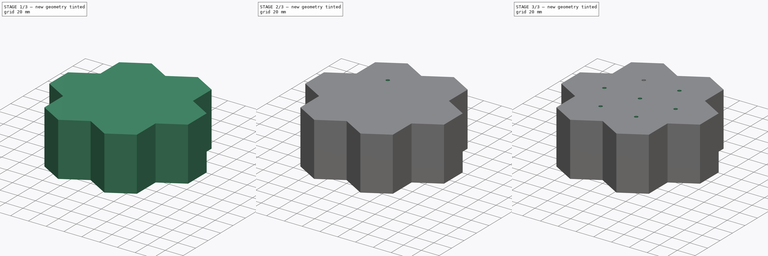
[diagram: build sequence overview — one tinted view per stage of 3, left to right]
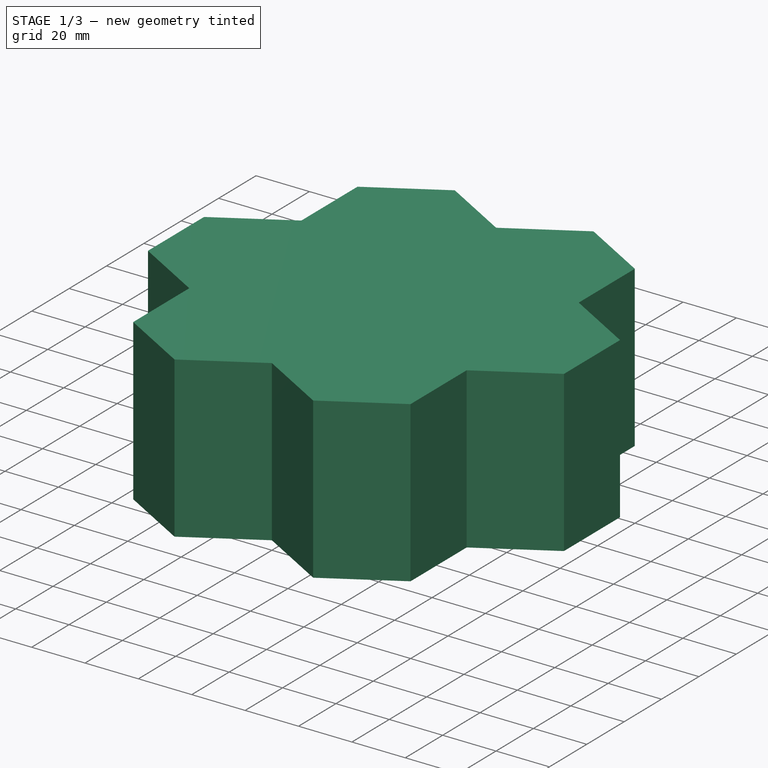
[diagram: stage 1 of 3 — iso view after this stage's code; geometry added in this stage tinted green]
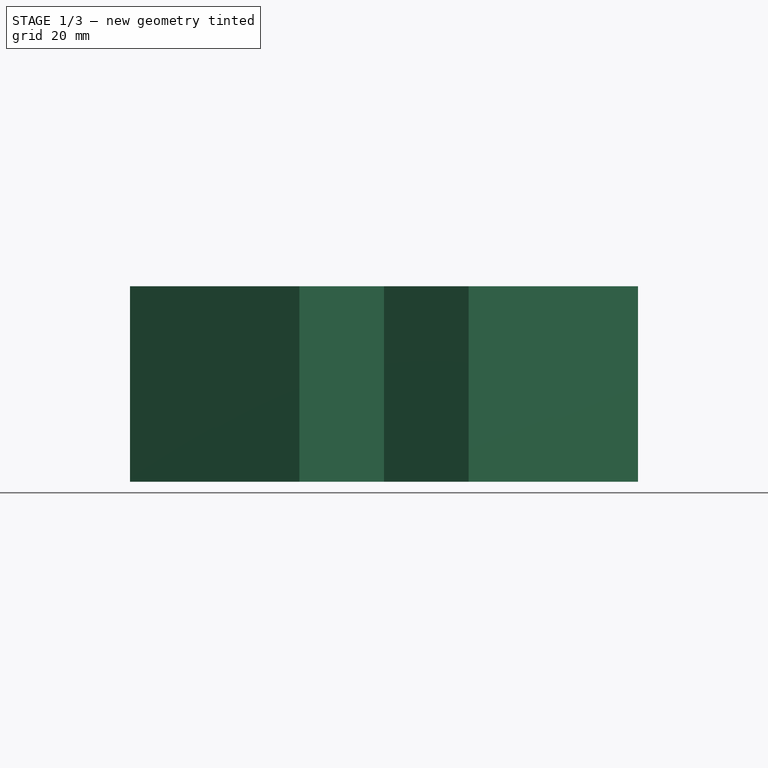
[diagram: stage 1 of 3 — front view after this stage's code; geometry added in this stage tinted green]
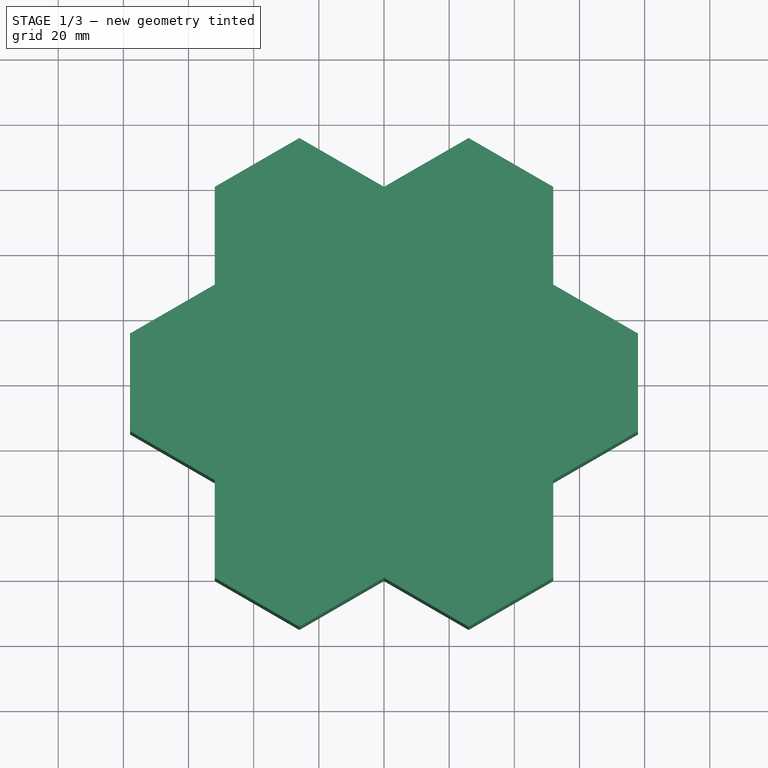
[diagram: stage 1 of 3 — top view after this stage's code; geometry added in this stage tinted green]
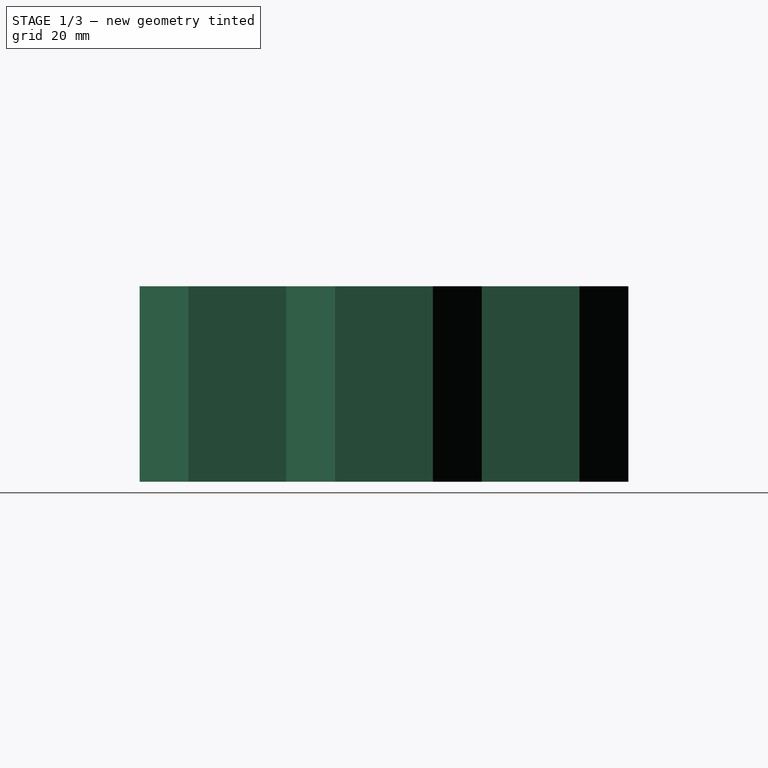
[diagram: stage 1 of 3 — right view after this stage's code; geometry added in this stage tinted green]
FCSTD DOCUMENT  (FreeCAD 0.19R24366 (Git))
Label: hexapots
License: All rights reserved
LicenseURL: http://en.wikipedia.org/wiki/All_rights_reserved
objects: Sketcher::SketchObject×5, PartDesign::Pocket×4, PartDesign::PolarPattern×2, PartDesign::Pad×1, PartDesign::Body×1
note: 18 computed .brp shape members not serialized (recipe doc carries the construction recipe); baked Part::Feature solids carry a one-line shape summary decoded from their .brp

FEATURE [Sketcher::SketchObject] Sketch
  FullyConstrained = true
  MapMode = 5
  Support = -> [XY_Plane]
  sketch-geometry (18):
    g0: LineSegment StartX=-25.9808 StartY=75 StartZ=0 EndX=-51.9615 EndY=60 EndZ=0
    g1: LineSegment StartX=-51.9615 StartY=60 StartZ=0 EndX=-51.9615 EndY=30 EndZ=0
    g2: LineSegment StartX=-51.9615 StartY=30 StartZ=0 EndX=-77.9423 EndY=15 EndZ=0
    g3: LineSegment StartX=-77.9423 StartY=15 StartZ=0 EndX=-77.9423 EndY=-15 EndZ=0
    g4: LineSegment StartX=-77.9423 StartY=-15 StartZ=0 EndX=-51.9615 EndY=-30 EndZ=0
    g5: LineSegment StartX=-51.9615 StartY=-30 StartZ=0 EndX=-51.9615 EndY=-60 EndZ=0
    g6: LineSegment StartX=-51.9615 StartY=-60 StartZ=0 EndX=-25.9808 EndY=-75 EndZ=0
    g7: LineSegment StartX=-25.9808 StartY=-75 StartZ=0 EndX=0 EndY=-60 EndZ=0
    g8: LineSegment StartX=0 StartY=-60 StartZ=0 EndX=25.9808 EndY=-75 EndZ=0
    g9: LineSegment StartX=25.9808 StartY=-75 StartZ=0 EndX=51.9615 EndY=-60 EndZ=0
    g10: LineSegment StartX=51.9615 StartY=-60 StartZ=0 EndX=51.9615 EndY=-30 EndZ=0
    g11: LineSegment StartX=51.9615 StartY=-30 StartZ=0 EndX=77.9423 EndY=-15 EndZ=0
    g12: LineSegment StartX=77.9423 StartY=-15 StartZ=0 EndX=77.9423 EndY=15 EndZ=0
    g13: LineSegment StartX=77.9423 StartY=15 StartZ=0 EndX=51.9615 EndY=30 EndZ=0
    g14: LineSegment StartX=51.9615 StartY=30 StartZ=0 EndX=51.9615 EndY=60 EndZ=0
    g15: LineSegment StartX=51.9615 StartY=60 StartZ=0 EndX=25.9808 EndY=75 EndZ=0
    g16: LineSegment StartX=25.9808 StartY=75 StartZ=0 EndX=0 EndY=60 EndZ=0
    g17: LineSegment StartX=0 StartY=60 StartZ=0 EndX=-25.9808 EndY=75 EndZ=0
  constraints (52):
    c: Equal(g0,g17)
    c: Equal(g17,g16)
    c: Equal(g16,g15)
    c: Equal(g15,g14)
    c: Equal(g14,g13)
    c: Equal(g13,g12)
    c: Equal(g12,g1)
    c: Equal(g1,g2)
    c: Equal(g3,g4)
    c: Equal(g4,g5)
    c: Equal(g5,g6)
    c: Equal(g6,g7)
    c: Equal(g7,g8)
    c: Equal(g8,g9)
    c: Equal(g10,g11)
    c: Equal(g11,g12)
    c: Angle(g1,g2) = 2.0944
    c: Angle(g3,g2) = 2.0944
    c: Angle(g4,g3) = 2.0944
    c: Angle(g4,g5) = 2.0944
    c: Angle(g6,g5) = 2.0944
    c: Angle(g7,g6) = 2.0944
    c: Angle(g7,g8) = 2.0944
    c: Angle(g9,g8) = 2.0944
    c: Angle(g10,g9) = 2.0944
    c: Angle(g10,g11) = 2.0944
    c: Angle(g1,g0) = 2.0944
    c: Angle(g0,g17) = 2.0944
    c: Angle(g16,g17) = 2.0944
    c: Angle(g16,g15) = 2.0944
    c: Angle(g15,g14) = 2.0944
    c: Coincident(g4,g3)
    c: Coincident(g4,g5)
    c: Coincident(g3,g2)
    c: Coincident(g5,g6)
    c: Coincident(g6,g7)
    c: Coincident(g7,g8)
    c: Coincident(g8,g9)
    c: Coincident(g9,g10)
    c: Coincident(g10,g11)
    c: Coincident(g12,g11)
    c: Coincident(g12,g13)
    c: Coincident(g14,g13)
    c: Coincident(g14,g15)
    c: Coincident(g15,g16)
    c: Coincident(g17,g16)
    c: Coincident(g17,g0)
    c: Coincident(g0,g1)
    c: Coincident(g2,g1)
    c: Symmetric(g7,g16,g-1)
    c: Distance(g10) = 30
    c: Symmetric(g6,g8,g-2)
FEATURE [PartDesign::Pad] Pad
  Direction = (1,1,1)
  Length = 60
  Length2 = 100
  Profile = -> Sketch
  Type = 0
FEATURE [Sketcher::SketchObject] Sketch001
  FullyConstrained = true
  MapMode = 5
  Support = -> [XY_Plane]
  sketch-geometry (6):
    g0: LineSegment StartX=1 StartY=-29.9833 StartZ=0 EndX=1 EndY=-57.9833 EndZ=0
    g1: LineSegment StartX=1 StartY=-57.9833 StartZ=0 EndX=25.2487 EndY=-71.9833 EndZ=0
    g2: LineSegment StartX=25.2487 StartY=-71.9833 StartZ=0 EndX=49.4974 EndY=-57.9833 EndZ=0
    g3: LineSegment StartX=49.4974 StartY=-57.9833 StartZ=0 EndX=49.4974 EndY=-29.9833 EndZ=0
    g4: LineSegment StartX=49.4974 StartY=-29.9833 StartZ=0 EndX=25.3505 EndY=-16.0421 EndZ=0
    g5: ArcOfCircle CenterX=0 CenterY=0 CenterZ=0 NormalX=0 NormalY=0 NormalZ=1 AngleXU=0 Radius=30 StartAngle=4.74573 EndAngle=5.71899
  constraints (18):
    c: Vertical(g0)
    c: Coincident(g0,g1)
    c: Coincident(g1,g2)
    c: Coincident(g2,g3)
    c: Coincident(g3,g4)
    c: Equal(g1,g2)
    c: Equal(g2,g3)
    c: Angle(g2,g1) = 2.0944
    c: Angle(g3,g2) = 2.0944
    c: Vertical(g3)
    c: Angle(g4,g3) = 2.0944
    c: DistanceY(g3,g3) = 28
    c: Coincident(g5,g0)
    c: Coincident(g5,g4)
    c: DistanceY(g0,g0) = 28
    c: Distance(g5,g0) = 30
    c: Coincident(g5,g-1)
    c: DistanceX(g5,g0) = 1
FEATURE [PartDesign::Pocket] Pocket
  BaseFeature = -> Pad
  Length = 58
  Length2 = 100
  Profile = -> Sketch001
  Reversed = true
  Type = 0
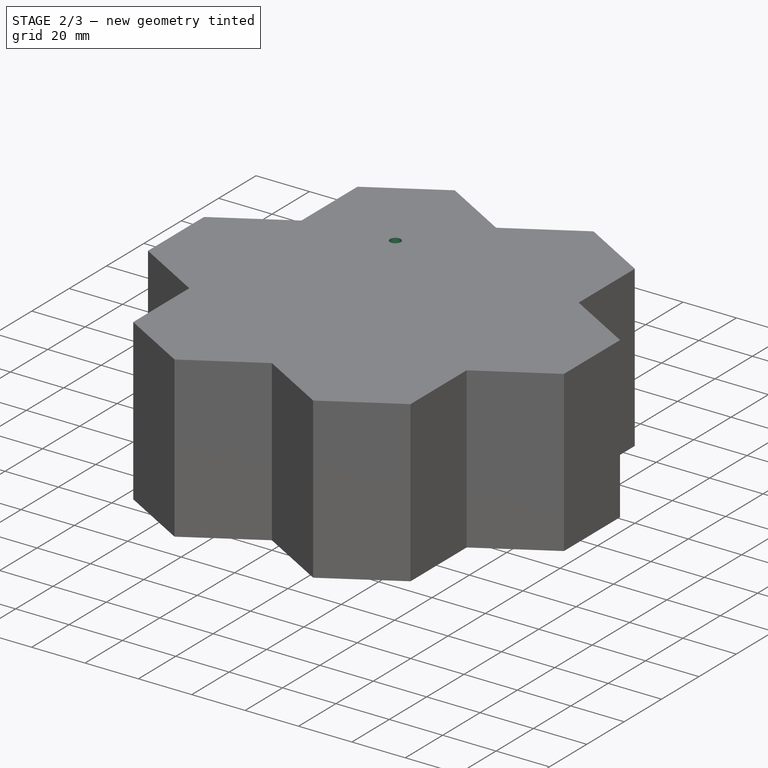
[diagram: stage 2 of 3 — iso view after this stage's code; geometry added in this stage tinted green]
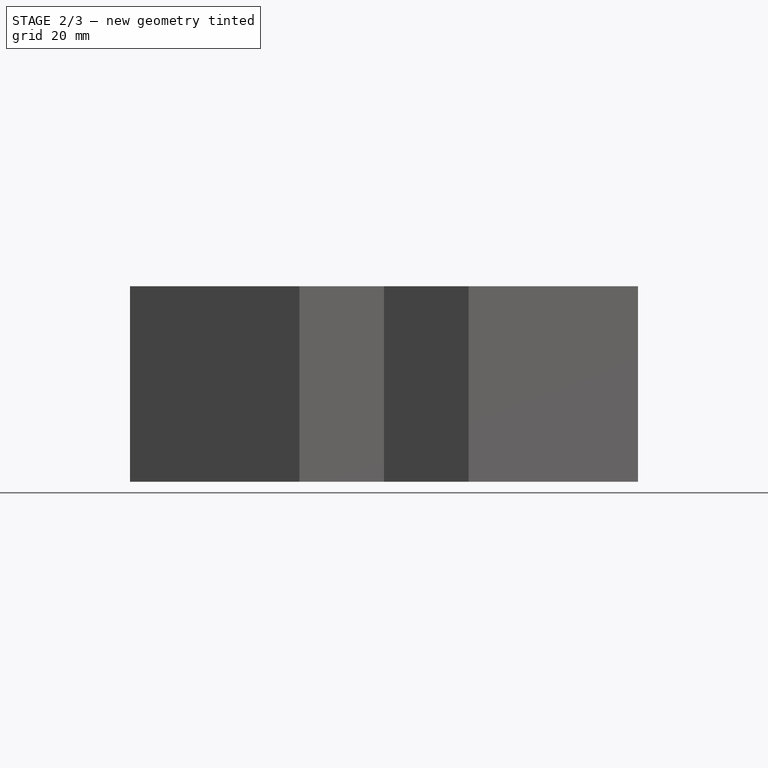
[diagram: stage 2 of 3 — front view after this stage's code; geometry added in this stage tinted green]
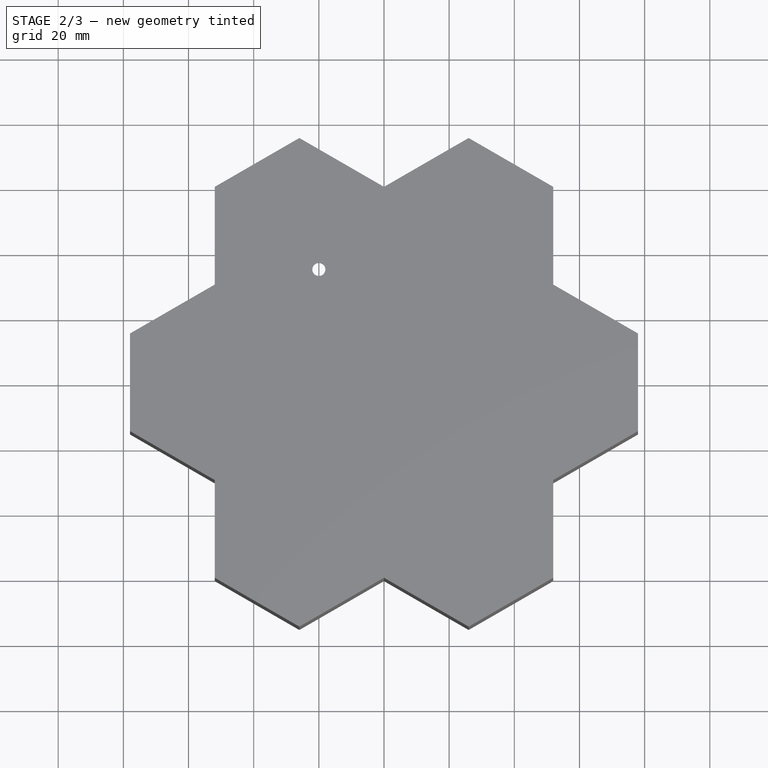
[diagram: stage 2 of 3 — top view after this stage's code; geometry added in this stage tinted green]
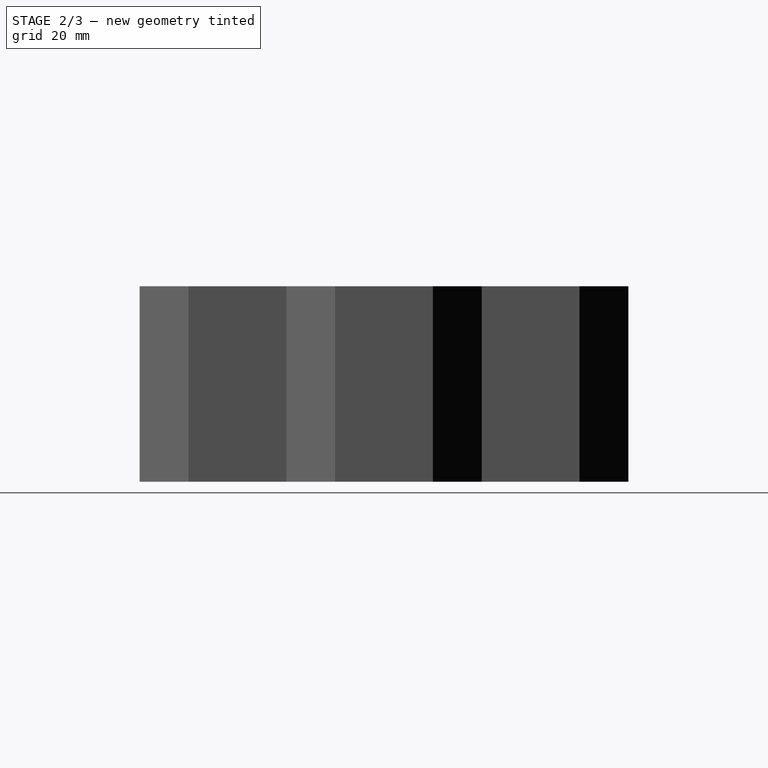
[diagram: stage 2 of 3 — right view after this stage's code; geometry added in this stage tinted green]
FEATURE [PartDesign::PolarPattern] PolarPattern
  Angle = 360
  Axis = -> Sketch001 [N_Axis]
  BaseFeature = -> Pocket
  Occurrences = 6
  Originals = -> [Pocket]
FEATURE [Sketcher::SketchObject] Sketch002
  FullyConstrained = true
  MapMode = 5
  Support = -> [XY_Plane]
  sketch-geometry (1):
    g0: Circle CenterX=0 CenterY=0 CenterZ=0 NormalX=0 NormalY=0 NormalZ=1 AngleXU=0 Radius=28
  constraints (2):
    c: Coincident(g0,g-1)
    c: Radius(g0) = 28
FEATURE [PartDesign::Pocket] Pocket001
  BaseFeature = -> PolarPattern
  Length = 58
  Length2 = 100
  Profile = -> Sketch002
  Reversed = true
  Type = 0
FEATURE [Sketcher::SketchObject] Sketch003
  FullyConstrained = false
  MapMode = 5
  Support = -> [XY_Plane]
  sketch-geometry (1):
    g0: Circle CenterX=-20 CenterY=34.641 CenterZ=0 NormalX=0 NormalY=0 NormalZ=1 AngleXU=0 Radius=2
  constraints (2):
    c: Radius(g0) = 2
    c: DistanceX(g0,g-1) = 20
FEATURE [PartDesign::Pocket] Pocket002
  BaseFeature = -> Pocket001
  Length = 5
  Length2 = 100
  Profile = -> Sketch003
  Reversed = true
  Type = 1
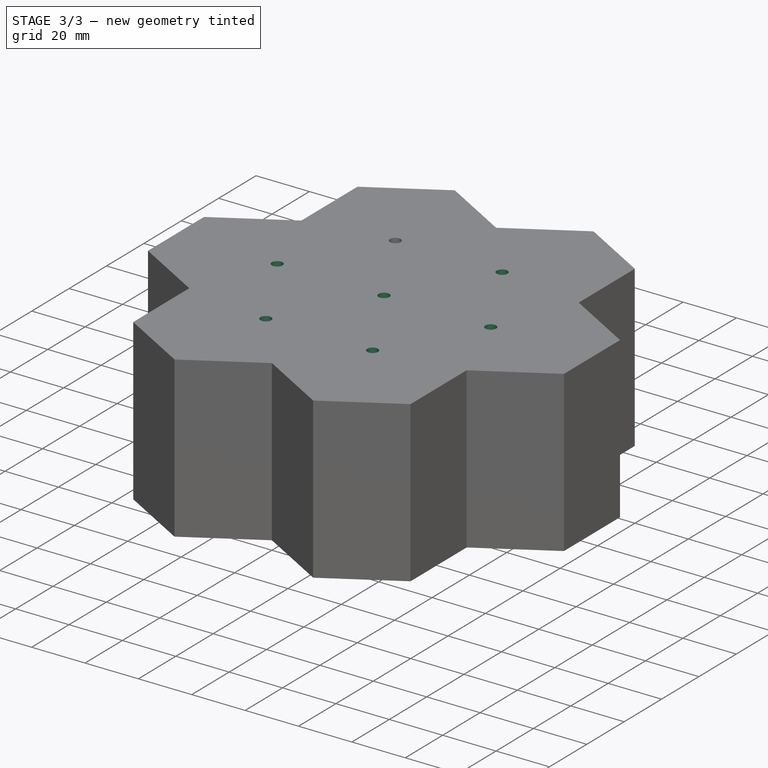
[diagram: stage 3 of 3 — iso view after this stage's code; geometry added in this stage tinted green]
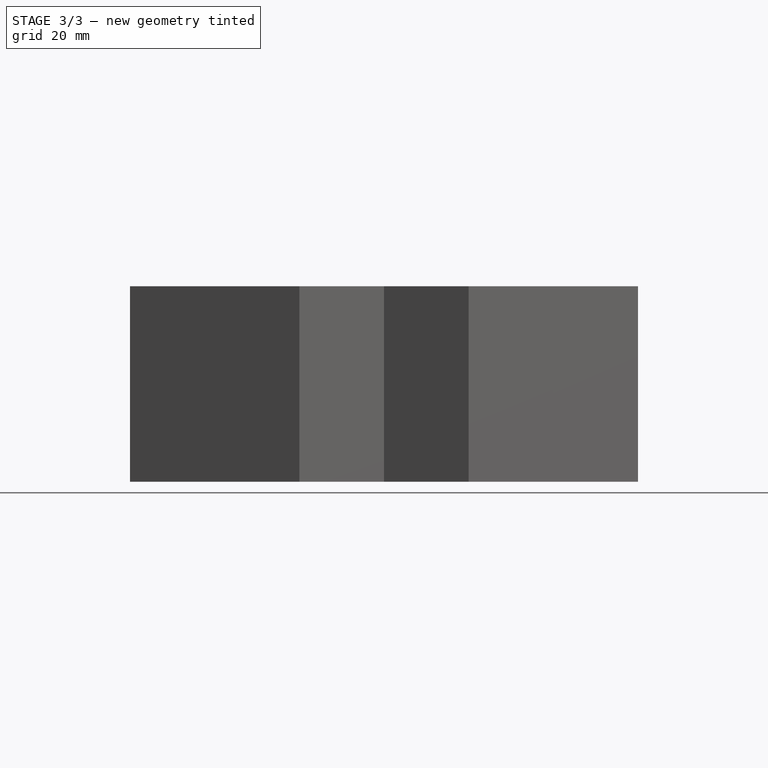
[diagram: stage 3 of 3 — front view after this stage's code; geometry added in this stage tinted green]
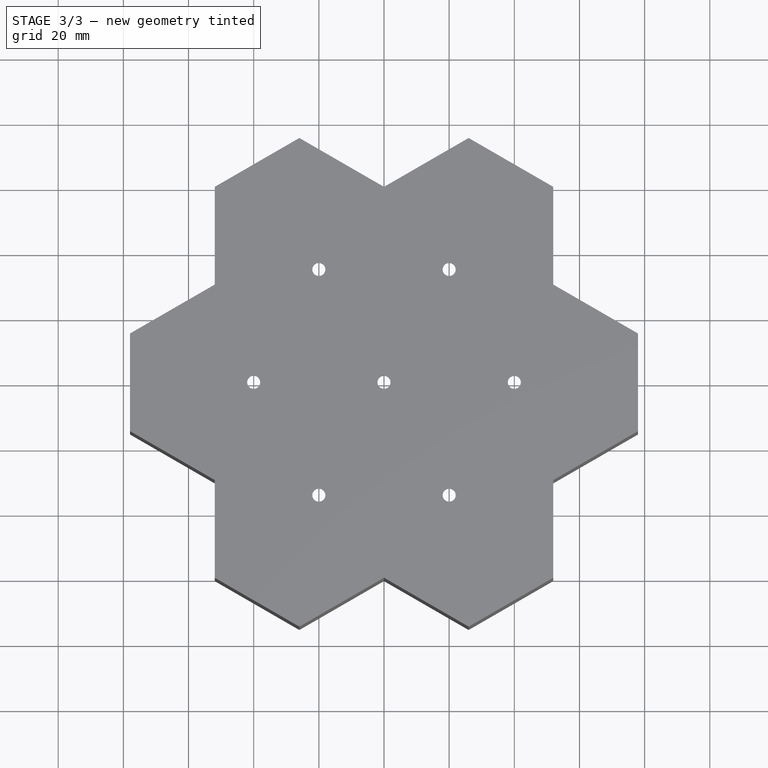
[diagram: stage 3 of 3 — top view after this stage's code; geometry added in this stage tinted green]
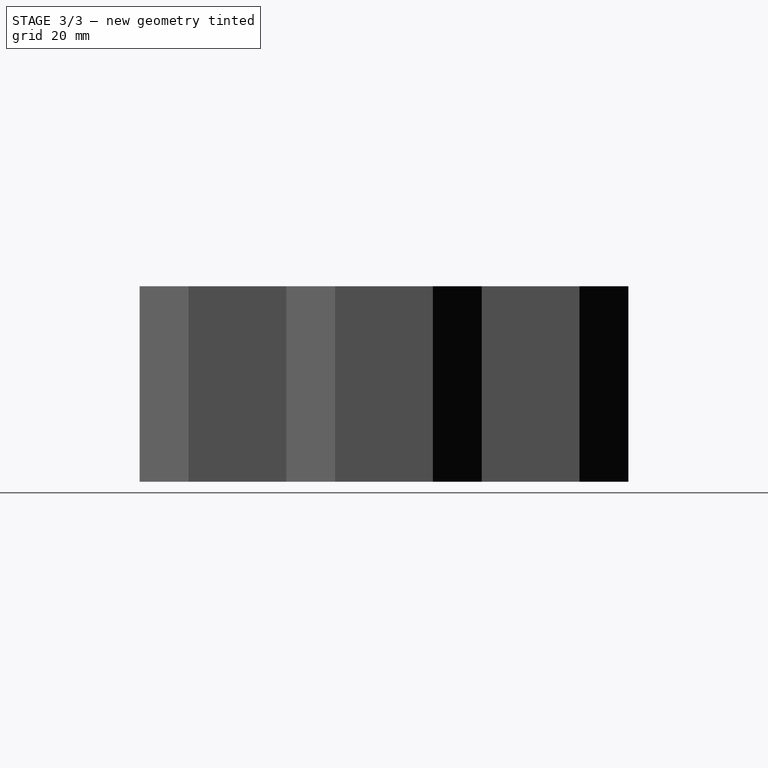
[diagram: stage 3 of 3 — right view after this stage's code; geometry added in this stage tinted green]
FEATURE [PartDesign::PolarPattern] PolarPattern001
  Angle = 360
  Axis = -> Sketch003 [N_Axis]
  BaseFeature = -> Pocket002
  Occurrences = 6
  Originals = -> [Pocket002]
FEATURE [Sketcher::SketchObject] Sketch004
  FullyConstrained = true
  MapMode = 5
  Support = -> [XY_Plane]
  sketch-geometry (1):
    g0: Circle CenterX=0 CenterY=0 CenterZ=0 NormalX=0 NormalY=0 NormalZ=1 AngleXU=0 Radius=2
  constraints (2):
    c: Coincident(g0,g-1)
    c: Radius(g0) = 2
FEATURE [PartDesign::Pocket] Pocket003
  BaseFeature = -> PolarPattern001
  Length = 5
  Length2 = 100
  Profile = -> Sketch004
  Reversed = true
  Type = 1
FEATURE [PartDesign::Body] Body
  Group = -> [Sketch,Pad,Sketch001,Pocket,PolarPattern,Sketch002,Pocket001,Sketch003,Pocket002,PolarPattern001,Sketch004,Pocket003]
  Origin = -> Origin
  Tip = -> Pocket003
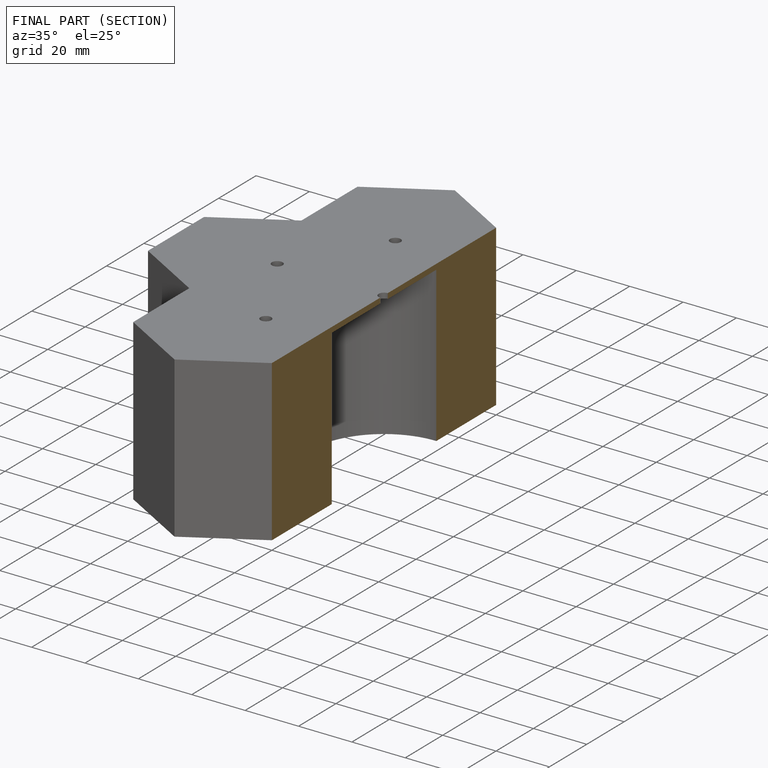
[diagram: finished part — half-section view (interior)]
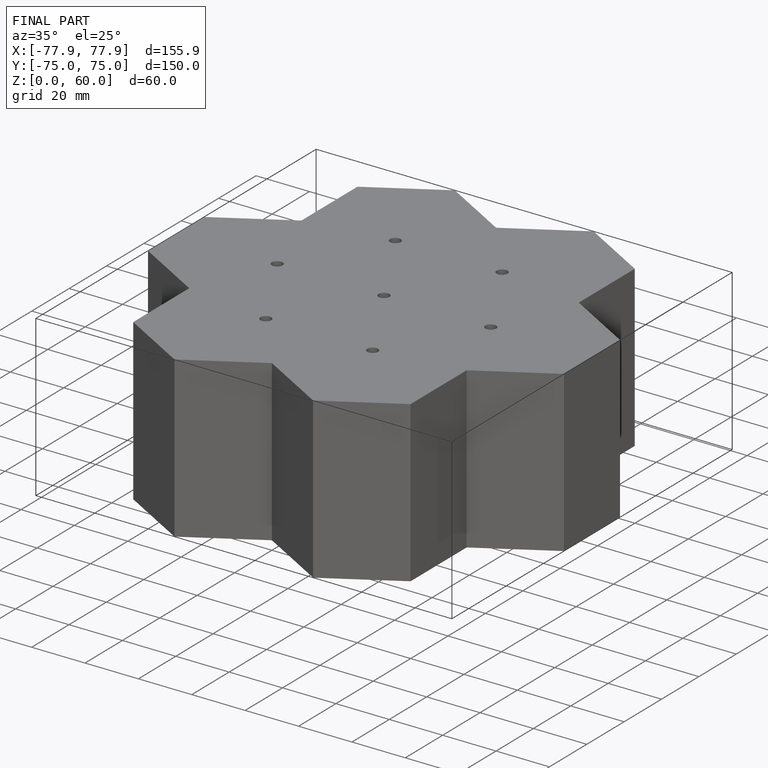
[diagram: finished part — iso view with bounding-box wireframe]
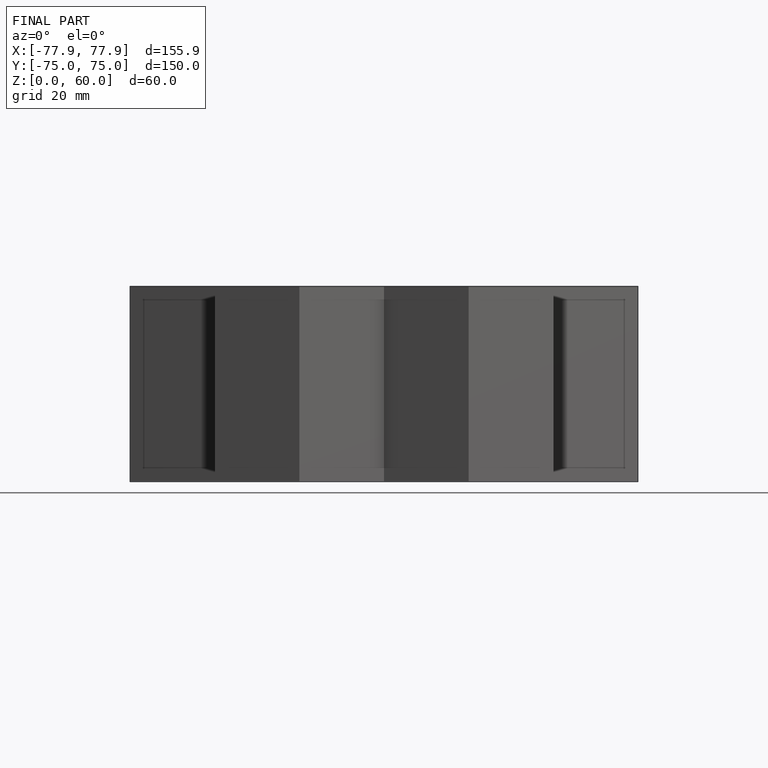
[diagram: finished part — front view with bounding-box wireframe]
